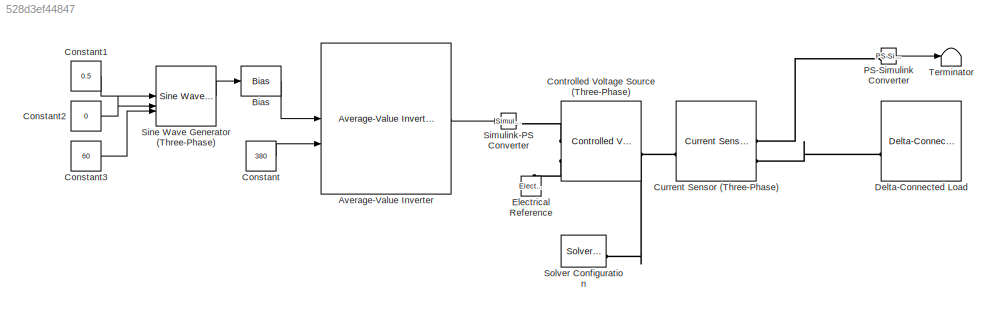
MODEL slx_528d3ef44847
KIND model
CONFIG AbsTol = auto
CONFIG EnableMultiTasking = off
CONFIG FixedStep = auto
CONFIG MaxStep = auto
CONFIG MinStep = auto
CONFIG RelTol = 1e-3
CONFIG SampleTimeConstraint = Unconstrained
CONFIG SolverName = VariableStepAuto
CONFIG StartTime = 0.0
CONFIG StopTime = 20
BLOCK [Reference] Average-Value Inverter  REF=mcbplantlib/Average-Value Inverter
  LibrarySourceBlock = mcblib/Electrical Systems/Inverters/Average-Value Inverter
  SourceBlock = mcbplantlib/Average-Value Inverter
  SourceType = Average Value Inverter
BLOCK [Bias] Bias
  Bias = 0.5
  SaturateOnIntegerOverflow = off
BLOCK [Constant] Constant
  Value = 380
BLOCK [Constant] Constant1
  SampleTime = -1
  Value = 0.5
BLOCK [Constant] Constant2
  SampleTime = -1
  Value = 0
BLOCK [Constant] Constant3
  SampleTime = -1
  Value = 60
BLOCK [Reference] Controlled Voltage Source (Three-Phase)  REF=ee_lib/Sources/Controlled Voltage
Source
(Three-Phase)
  SourceBlock = ee_lib/Sources/Controlled Voltage\nSource\n(Three-Phase)
  SourceType = Controlled Voltage\nSource\n(Three-Phase)
BLOCK [Reference] Current Sensor (Three-Phase)  REF=ee_lib/Sensors &
Transducers/Current Sensor
(Three-Phase)
  SourceBlock = ee_lib/Sensors &\nTransducers/Current Sensor\n(Three-Phase)
  SourceType = Current Sensor\n(Three-Phase)
BLOCK [Reference] Delta-Connected Load  REF=ee_lib/Passive/RLC Assemblies/Delta-Connected Load
  SourceBlock = ee_lib/Passive/RLC Assemblies/Delta-Connected Load
  SourceType = Delta-Connected Load
BLOCK [Reference] Electrical Reference  REF=fl_lib/Electrical/Electrical Elements/Electrical Reference
  LibrarySourceBlock = ee_lib/Connectors &\nReferences/Electrical Reference
  NameLocation = right
  SourceBlock = fl_lib/Electrical/Electrical Elements/Electrical Reference
  SourceType = Electrical Reference
BLOCK [Reference] PS-Simulink Converter  REF=nesl_utility/PS-Simulink
Converter
  SourceBlock = nesl_utility/PS-Simulink\nConverter
  SourceType = PS-Simulink\nConverter
BLOCK [Reference] Simulink-PS Converter  REF=nesl_utility/Simulink-PS
Converter
  SourceBlock = nesl_utility/Simulink-PS\nConverter
  SourceType = Simulink-PS\nConverter
BLOCK [Reference] Sine Wave Generator (Three-Phase)  REF=eeSinGeneratorThreePhase/Sine Wave Generator
(Three-Phase)
  LibrarySourceBlock = ee_sl_lib/General Control/Sine Wave Generator\n(Three-Phase)
  SourceBlock = eeSinGeneratorThreePhase/Sine Wave Generator\n(Three-Phase)
  SourceType = Sine Wave Generator (Three-Phase)
BLOCK [Reference] Solver Configuration  REF=nesl_utility/Solver
Configuration
  SourceBlock = nesl_utility/Solver\nConfiguration
  SourceType = Solver\nConfiguration
BLOCK [Terminator] Terminator
LINE Average-Value Inverter:1 -> Simulink-PS Converter:1
LINE Bias:1 -> Average-Value Inverter:1
LINE Constant1:1 -> Sine Wave Generator (Three-Phase):1
LINE Constant2:1 -> Sine Wave Generator (Three-Phase):2
LINE Constant3:1 -> Sine Wave Generator (Three-Phase):3
LINE Constant:1 -> Average-Value Inverter:2
LINE PS-Simulink Converter:1 -> Terminator:1
LINE Sine Wave Generator (Three-Phase):1 -> Bias:1
PLINE Controlled Voltage Source (Three-Phase):LConn1 -- Simulink-PS Converter:RConn1
PLINE Controlled Voltage Source (Three-Phase):LConn2 -- Electrical Reference:LConn1
PNET net1: Controlled Voltage Source (Three-Phase):RConn1 -- Current Sensor (Three-Phase):LConn1 -- Solver Configuration:RConn1
PLINE Current Sensor (Three-Phase):RConn1 -- PS-Simulink Converter:LConn1
PLINE Current Sensor (Three-Phase):RConn2 -- Delta-Connected Load:LConn1
note: PNET lines group multi-terminal physical nets as a canonical sorted terminal list (undirected conserving connections); 2-terminal nets keep the pairwise PLINE form
